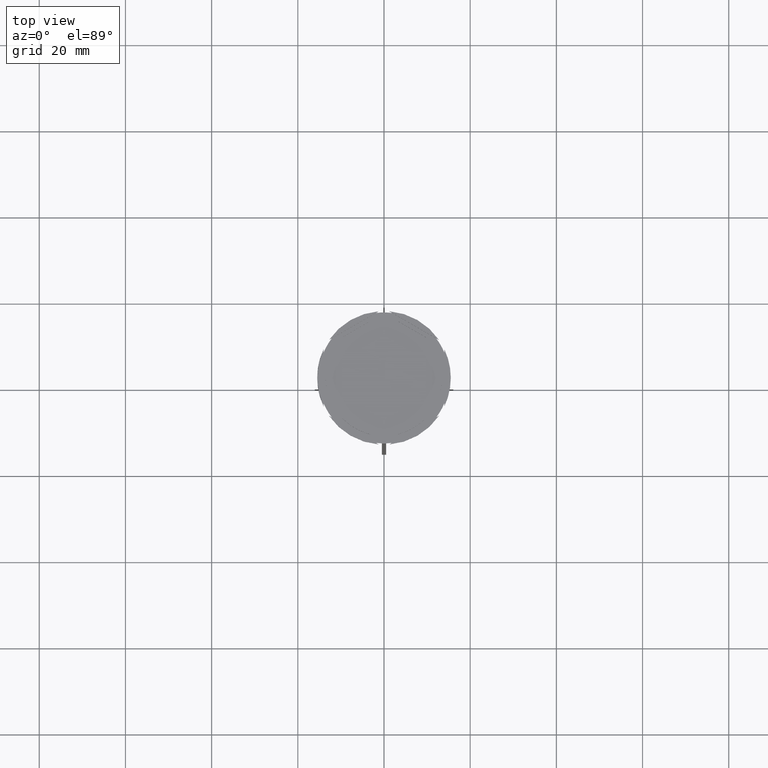
[diagram: clean part render]
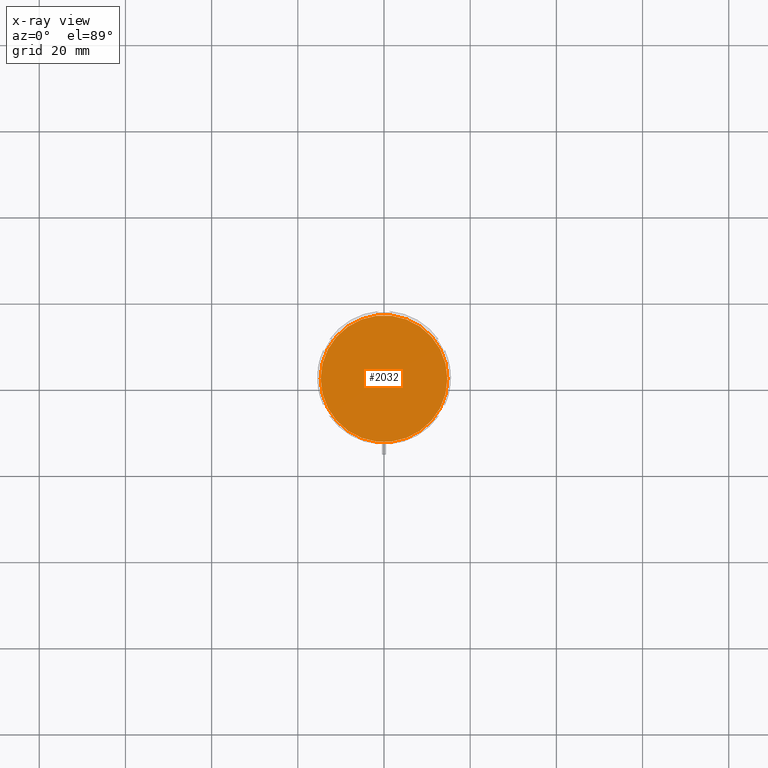
[diagram: x-ray — body ghosted, one internal face saturated and labeled with its STEP entity id]
A machine part, top view, then the same camera in x-ray: the body is ghosted and one INTERNAL B-rep face — a face not visible from any outside direction — is saturated and labeled: STEP entity #2032.
In plain terms, the highlighted planar face has unit normal (0, 0, -1).
Its self-contained STEP definition (entity closure, byte-faithful):
#266 = DIRECTION ( 'NONE',  ( -1.000000000000000000, 0.000000000000000000, 0.000000000000000000 ) ) ;
#480 = DIRECTION ( 'NONE',  ( 0.000000000000000000, 0.000000000000000000, -1.000000000000000000 ) ) ;
#887 = CARTESIAN_POINT ( 'NONE',  ( 0.000000000000000000, 0.000000000000000000, -12.00000000000000000 ) ) ;
#1015 = VERTEX_POINT ( 'NONE', #2785 ) ;
#1321 = ORIENTED_EDGE ( 'NONE', *, *, #2648, .T. ) ;
#1439 = EDGE_CURVE ( 'NONE', #1015, #1990, #2426, .T. ) ;
#1473 = DIRECTION ( 'NONE',  ( -1.000000000000000000, 0.000000000000000000, 0.000000000000000000 ) ) ;
#1615 = CARTESIAN_POINT ( 'NONE',  ( 0.000000000000000000, 0.000000000000000000, -12.00000000000000000 ) ) ;
#1645 = CIRCLE ( 'NONE', #2112, 14.70000000000000107 ) ;
#1757 = FACE_OUTER_BOUND ( 'NONE', #2566, .T. ) ;
#1775 = PLANE ( 'NONE',  #1823 ) ;
#1823 = AXIS2_PLACEMENT_3D ( 'NONE', #887, #480, #2252 ) ;
#1901 = CARTESIAN_POINT ( 'NONE',  ( 0.000000000000000000, 0.000000000000000000, -12.00000000000000000 ) ) ;
#1990 = VERTEX_POINT ( 'NONE', #2617 ) ;
#2032 = ADVANCED_FACE ( 'NONE', ( #1757 ), #1775, .F. ) ;
#2097 = DIRECTION ( 'NONE',  ( -0.000000000000000000, -0.000000000000000000, 1.000000000000000000 ) ) ;
#2112 = AXIS2_PLACEMENT_3D ( 'NONE', #1901, #2608, #1473 ) ;
#2143 = AXIS2_PLACEMENT_3D ( 'NONE', #1615, #2097, #266 ) ;
#2252 = DIRECTION ( 'NONE',  ( -1.000000000000000000, 0.000000000000000000, -0.000000000000000000 ) ) ;
#2384 = ORIENTED_EDGE ( 'NONE', *, *, #1439, .T. ) ;
#2426 = CIRCLE ( 'NONE', #2143, 14.70000000000000107 ) ;
#2566 = EDGE_LOOP ( 'NONE', ( #2384, #1321 ) ) ;
#2608 = DIRECTION ( 'NONE',  ( -0.000000000000000000, -0.000000000000000000, 1.000000000000000000 ) ) ;
#2617 = CARTESIAN_POINT ( 'NONE',  ( 14.70000000000000107, 1.818600496733819553E-15, -12.00000000000000000 ) ) ;
#2648 = EDGE_CURVE ( 'NONE', #1990, #1015, #1645, .T. ) ;
#2785 = CARTESIAN_POINT ( 'NONE',  ( -14.70000000000000107, 0.000000000000000000, -12.00000000000000000 ) ) ;